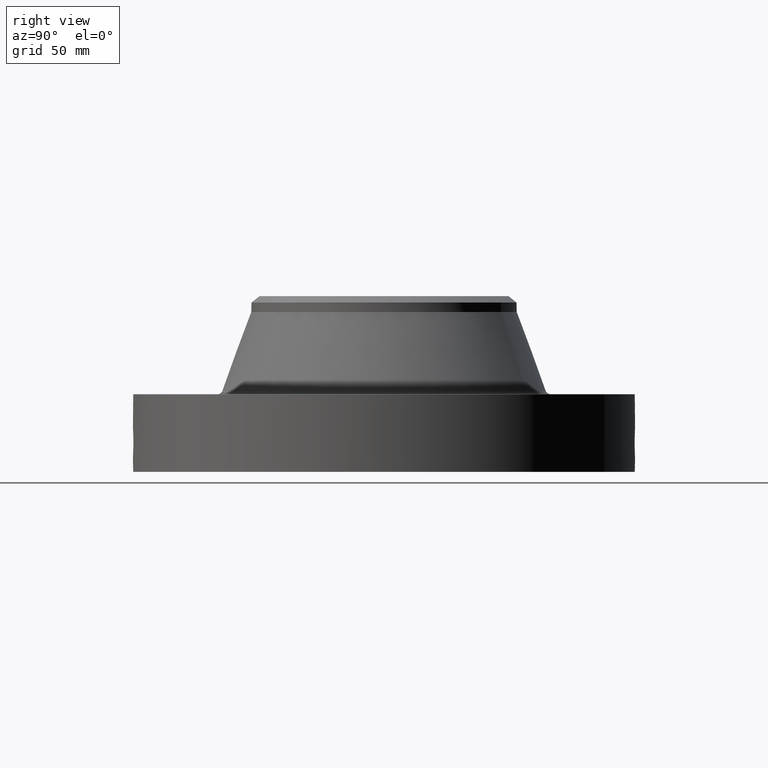
[diagram: clean part render]
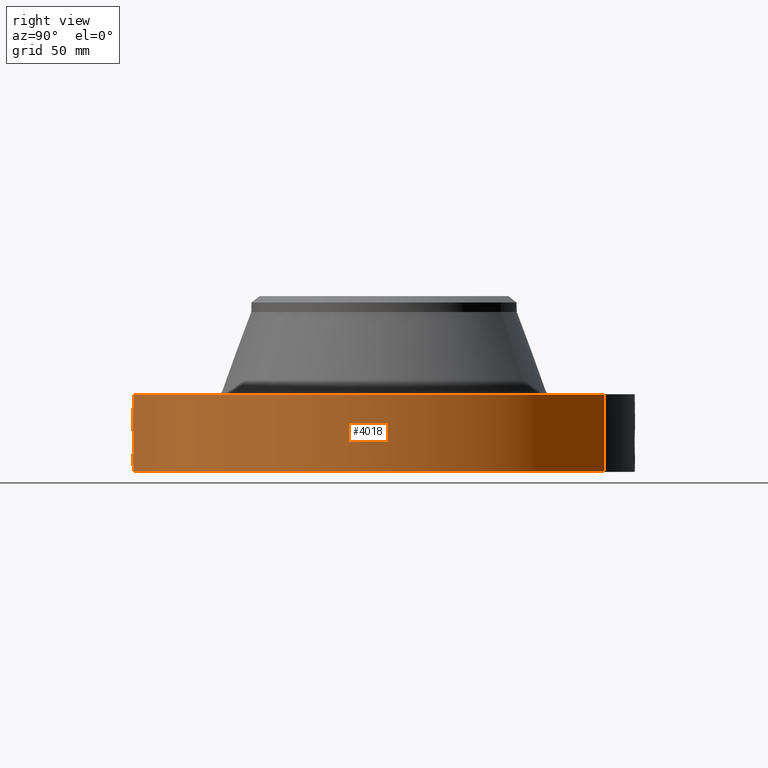
[diagram: same view with one face highlighted and labeled with its STEP entity id]
A machine part, right view. The second image highlights one B-rep face of the part: STEP entity #4018.
In plain terms, the highlighted cylindrical surface (partial cylindrical patch) has radius 158.75 mm, axis along (0, 0, -1).
Its self-contained STEP definition (entity closure, byte-faithful):
#2918=AXIS2_PLACEMENT_3D('Circle Axis2P3D',#2916,#2917,$) ;
#3807=AXIS2_PLACEMENT_3D('Cylinder Axis2P3D',#3804,#3805,#3806) ;
#3923=AXIS2_PLACEMENT_3D('Circle Axis2P3D',#3921,#3922,$) ;
#2916=CARTESIAN_POINT('Axis2P3D Location',(0.,0.,1.93200000001)) ;
#2920=CARTESIAN_POINT('Vertex',(2.99640961629,5.48489101184,1.93200000001)) ;
#2922=CARTESIAN_POINT('Vertex',(-2.99640961629,-5.48489101184,1.93200000001)) ;
#3804=CARTESIAN_POINT('Axis2P3D Location',(0.,0.,2.18600000001)) ;
#3813=CARTESIAN_POINT('Vertex',(-2.99640961629,-5.48489101184,5.59482469102E-016)) ;
#3815=CARTESIAN_POINT('Vertex',(2.99640961629,5.48489101184,5.59482469102E-016)) ;
#3818=CARTESIAN_POINT('Line Origine',(-2.99640961629,-5.48489101184,0.966000000004)) ;
#3823=CARTESIAN_POINT('Line Origine',(2.99640961629,5.48489101184,0.966000000004)) ;
#3921=CARTESIAN_POINT('Axis2P3D Location',(0.,0.,5.59482469102E-016)) ;
#3933=CARTESIAN_POINT('Control Point',(0.0614644708708,-6.24969776222,1.09873436883)) ;
#3934=CARTESIAN_POINT('Control Point',(0.0414212323384,-6.24989488328,1.10227332161)) ;
#3935=CARTESIAN_POINT('Control Point',(0.0210708577162,-6.24999762512,1.10407720134)) ;
#3936=CARTESIAN_POINT('Control Point',(0.000716625009006,-6.24999995894,1.10411849791)) ;
#3937=CARTESIAN_POINT('Vertex',(0.0614464241207,-6.2496982013,1.09873785234)) ;
#3939=CARTESIAN_POINT('Vertex',(0.000716453227476,-6.24999995896,1.10411850827)) ;
#3943=CARTESIAN_POINT('Control Point',(0.0614463070102,-6.24969794083,1.09873724316)) ;
#3944=CARTESIAN_POINT('Control Point',(0.0996024776054,-6.24932279378,1.09347493394)) ;
#3945=CARTESIAN_POINT('Control Point',(0.136899408556,-6.24859399424,1.08129770183)) ;
#3946=CARTESIAN_POINT('Control Point',(0.171067775012,-6.2476584267,1.06316971548)) ;
#3947=CARTESIAN_POINT('Vertex',(0.171067775012,-6.2476584267,1.06316971548)) ;
#3951=CARTESIAN_POINT('Control Point',(0.0296245443516,-6.24992979054,0.341087372776)) ;
#3952=CARTESIAN_POINT('Control Point',(0.0850675259606,-6.2496669919,0.348171888581)) ;
#3953=CARTESIAN_POINT('Control Point',(0.138902304902,-6.24879701054,0.365715220567)) ;
#3954=CARTESIAN_POINT('Control Point',(0.188307427662,-6.24740321408,0.393150599938)) ;
#3955=CARTESIAN_POINT('Control Point',(0.276449759455,-6.24415684033,0.465463621791)) ;
#3956=CARTESIAN_POINT('Control Point',(0.333310201866,-6.24118109957,0.56232402317)) ;
#3957=CARTESIAN_POINT('Control Point',(0.353079980261,-6.24002779378,0.616112250485)) ;
#3958=CARTESIAN_POINT('Control Point',(0.369146432399,-6.23909137212,0.704601838586)) ;
#3959=CARTESIAN_POINT('Control Point',(0.36094586116,-6.23956933018,0.792529778612)) ;
#3960=CARTESIAN_POINT('Control Point',(0.354582003083,-6.23994118495,0.824632684938)) ;
#3961=CARTESIAN_POINT('Control Point',(0.330408067931,-6.24131002518,0.902893097273)) ;
#3962=CARTESIAN_POINT('Control Point',(0.286455101207,-6.24352532278,0.972422725454)) ;
#3963=CARTESIAN_POINT('Control Point',(0.253273546987,-6.245034888,1.00958792425)) ;
#3964=CARTESIAN_POINT('Control Point',(0.214209132453,-6.24647716877,1.04028111714)) ;
#3965=CARTESIAN_POINT('Control Point',(0.171067775012,-6.2476584267,1.06316971548)) ;
#3966=CARTESIAN_POINT('Vertex',(0.0296245443516,-6.24992979054,0.341087372776)) ;
#3970=CARTESIAN_POINT('Control Point',(0.0296245443516,-6.24992979054,0.341087372776)) ;
#3971=CARTESIAN_POINT('Control Point',(0.0197431577964,-6.24997662812,0.340860275533)) ;
#3972=CARTESIAN_POINT('Control Point',(0.0098586917683,-6.25000000433,0.340956168037)) ;
#3973=CARTESIAN_POINT('Control Point',(-2.72878352502E-006,-6.25000000002,0.341374667804)) ;
#3974=CARTESIAN_POINT('Vertex',(-2.72878353663E-006,-6.25000000002,0.341374667804)) ;
#3978=CARTESIAN_POINT('Control Point',(-0.193907788678,-6.24699125738,0.395063102329)) ;
#3979=CARTESIAN_POINT('Control Point',(-0.134702711631,-6.24882899416,0.362547233305)) ;
#3980=CARTESIAN_POINT('Control Point',(-0.067796997851,-6.24999997043,0.344251727977)) ;
#3981=CARTESIAN_POINT('Control Point',(-2.72878354167E-006,-6.25000000002,0.341374667804)) ;
#3982=CARTESIAN_POINT('Vertex',(-0.193907788677,-6.24699125738,0.395063102329)) ;
#3986=CARTESIAN_POINT('Control Point',(-0.193907788677,-6.24699125738,0.395063102329)) ;
#3987=CARTESIAN_POINT('Control Point',(-0.223359296918,-6.246077077,0.411238090519)) ;
#3988=CARTESIAN_POINT('Control Point',(-0.251216865755,-6.24503864376,0.430307098825)) ;
#3989=CARTESIAN_POINT('Control Point',(-0.277075705087,-6.24392572688,0.452131253376)) ;
#3990=CARTESIAN_POINT('Control Point',(-0.344938074301,-6.24068148302,0.522693985698)) ;
#3991=CARTESIAN_POINT('Control Point',(-0.389128162856,-6.23793966725,0.611689973635)) ;
#3992=CARTESIAN_POINT('Control Point',(-0.405171661893,-6.23683264769,0.675656412571)) ;
#3993=CARTESIAN_POINT('Control Point',(-0.407320033861,-6.23674970228,0.789563725271)) ;
#3994=CARTESIAN_POINT('Control Point',(-0.368187373073,-6.23918287745,0.894141735245)) ;
#3995=CARTESIAN_POINT('Control Point',(-0.344342823257,-6.24059961408,0.935513503945)) ;
#3996=CARTESIAN_POINT('Control Point',(-0.274833312474,-6.244271631,1.02150779293)) ;
#3997=CARTESIAN_POINT('Control Point',(-0.180523313051,-6.24777195235,1.07763433917)) ;
#3998=CARTESIAN_POINT('Control Point',(-0.121387729789,-6.24927433208,1.09831328308)) ;
#3999=CARTESIAN_POINT('Control Point',(-0.0602306858691,-6.25000024927,1.10710706099)) ;
#4000=CARTESIAN_POINT('Control Point',(2.5857935517E-005,-6.24999999997,1.10415298435)) ;
#4001=CARTESIAN_POINT('Vertex',(2.58579355267E-005,-6.24999999997,1.10415298435)) ;
#4005=CARTESIAN_POINT('Control Point',(0.000716453216618,-6.24999995896,1.10411850825)) ;
#4006=CARTESIAN_POINT('Control Point',(0.00037117918982,-6.24999999854,1.10413605498)) ;
#4007=CARTESIAN_POINT('Control Point',(2.58579422041E-005,-6.24999999997,1.10415298434)) ;
#2917=DIRECTION('Axis2P3D Direction',(0.,0.,-0.0393700787402)) ;
#3805=DIRECTION('Axis2P3D Direction',(0.,0.,-0.0393700787402)) ;
#3806=DIRECTION('Axis2P3D XDirection',(0.0188750212049,0.0345504945626,0.)) ;
#3819=DIRECTION('Vector Direction',(0.,0.,-0.0393700787402)) ;
#3824=DIRECTION('Vector Direction',(0.,0.,-0.0393700787402)) ;
#3922=DIRECTION('Axis2P3D Direction',(0.,0.,-0.0393700787402)) ;
#3820=VECTOR('Line Direction',#3819,0.0393700787402) ;
#3825=VECTOR('Line Direction',#3824,0.0393700787402) ;
#3927=ORIENTED_EDGE('',*,*,#3925,.F.) ;
#3928=ORIENTED_EDGE('',*,*,#3827,.T.) ;
#3929=ORIENTED_EDGE('',*,*,#2924,.T.) ;
#3930=ORIENTED_EDGE('',*,*,#3822,.F.) ;
#4010=ORIENTED_EDGE('',*,*,#3941,.F.) ;
#4011=ORIENTED_EDGE('',*,*,#3949,.T.) ;
#4012=ORIENTED_EDGE('',*,*,#3968,.F.) ;
#4013=ORIENTED_EDGE('',*,*,#3976,.T.) ;
#4014=ORIENTED_EDGE('',*,*,#3984,.F.) ;
#4015=ORIENTED_EDGE('',*,*,#4003,.T.) ;
#4016=ORIENTED_EDGE('',*,*,#4008,.F.) ;
#4017=FACE_BOUND('',#4009,.T.) ;
#4018=ADVANCED_FACE('PartBody',(#3931,#4017),#3808,.T.) ;
#3932=B_SPLINE_CURVE_WITH_KNOTS('',3,(#3933,#3934,#3935,#3936),.UNSPECIFIED.,.F.,.U.,(4,4),(4.2635109077,6.52162971837),.UNSPECIFIED.) ;
#3942=B_SPLINE_CURVE_WITH_KNOTS('',3,(#3943,#3944,#3945,#3946),.UNSPECIFIED.,.F.,.U.,(4,4),(0.,4.32778387479),.UNSPECIFIED.) ;
#3950=B_SPLINE_CURVE_WITH_KNOTS('',5,(#3951,#3952,#3953,#3954,#3955,#3956,#3957,#3958,#3959,#3960,#3961,#3962,#3963,#3964,#3965),.UNSPECIFIED.,.F.,.U.,(6,3,3,3,6),(0.,9.7143254592,19.9376217561,25.9632514593,35.0704312992),.UNSPECIFIED.) ;
#3969=B_SPLINE_CURVE_WITH_KNOTS('',3,(#3970,#3971,#3972,#3973),.UNSPECIFIED.,.F.,.U.,(4,4),(0.,1.03063376473),.UNSPECIFIED.) ;
#3977=B_SPLINE_CURVE_WITH_KNOTS('',3,(#3978,#3979,#3980,#3981),.UNSPECIFIED.,.F.,.U.,(4,4),(0.,7.08529389666),.UNSPECIFIED.) ;
#3985=B_SPLINE_CURVE_WITH_KNOTS('',5,(#3986,#3987,#3988,#3989,#3990,#3991,#3992,#3993,#3994,#3995,#3996,#3997,#3998,#3999,#4000),.UNSPECIFIED.,.F.,.U.,(6,3,3,3,6),(0.,5.87428769805,17.0154730892,25.3762090749,36.6394055391),.UNSPECIFIED.) ;
#4004=B_SPLINE_CURVE_WITH_KNOTS('',2,(#4005,#4006,#4007),.UNSPECIFIED.,.F.,.U.,(3,3),(1.07159595185,1.09741503161),.UNSPECIFIED.) ;
#2919=CIRCLE('generated circle',#2918,6.25000000003) ;
#3924=CIRCLE('generated circle',#3923,6.25000000003) ;
#3808=CYLINDRICAL_SURFACE('generated cylinder',#3807,6.25000000003) ;
#2924=EDGE_CURVE('',#2921,#2923,#2919,.T.) ;
#3822=EDGE_CURVE('',#3814,#2923,#3821,.F.) ;
#3827=EDGE_CURVE('',#3816,#2921,#3826,.F.) ;
#3925=EDGE_CURVE('',#3816,#3814,#3924,.T.) ;
#3941=EDGE_CURVE('',#3938,#3940,#3932,.T.) ;
#3949=EDGE_CURVE('',#3938,#3948,#3942,.T.) ;
#3968=EDGE_CURVE('',#3967,#3948,#3950,.T.) ;
#3976=EDGE_CURVE('',#3967,#3975,#3969,.T.) ;
#3984=EDGE_CURVE('',#3983,#3975,#3977,.T.) ;
#4003=EDGE_CURVE('',#3983,#4002,#3985,.T.) ;
#4008=EDGE_CURVE('',#3940,#4002,#4004,.T.) ;
#3926=EDGE_LOOP('',(#3927,#3928,#3929,#3930)) ;
#4009=EDGE_LOOP('',(#4010,#4011,#4012,#4013,#4014,#4015,#4016)) ;
#3931=FACE_OUTER_BOUND('',#3926,.T.) ;
#3821=LINE('Line',#3818,#3820) ;
#3826=LINE('Line',#3823,#3825) ;
#2921=VERTEX_POINT('',#2920) ;
#2923=VERTEX_POINT('',#2922) ;
#3814=VERTEX_POINT('',#3813) ;
#3816=VERTEX_POINT('',#3815) ;
#3938=VERTEX_POINT('',#3937) ;
#3940=VERTEX_POINT('',#3939) ;
#3948=VERTEX_POINT('',#3947) ;
#3967=VERTEX_POINT('',#3966) ;
#3975=VERTEX_POINT('',#3974) ;
#3983=VERTEX_POINT('',#3982) ;
#4002=VERTEX_POINT('',#4001) ;